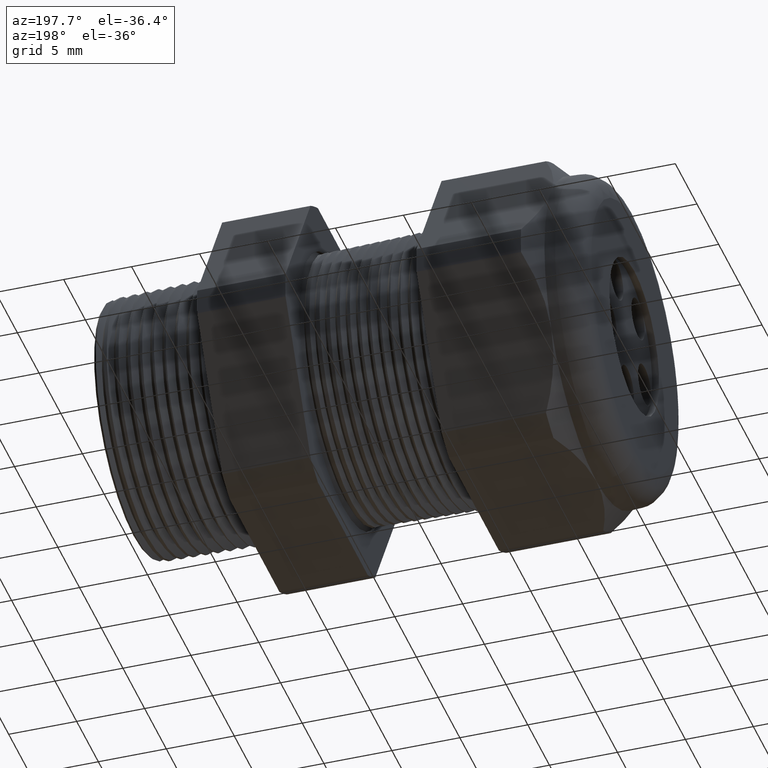
[diagram: clean part render]
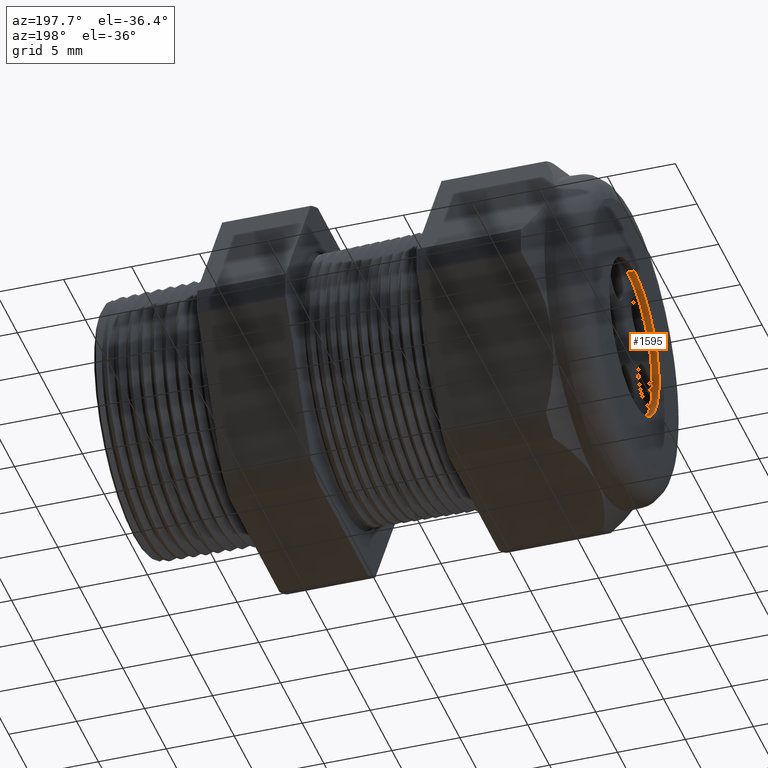
[diagram: same view with one face highlighted and labeled with its STEP entity id]
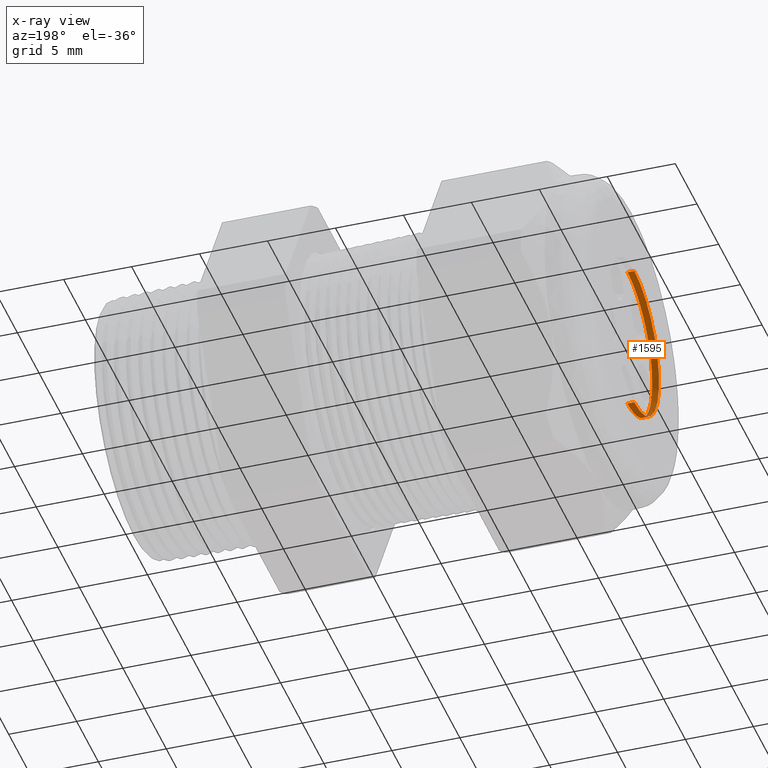
[diagram: x-ray of the same camera — body ghosted, the highlighted face saturated]
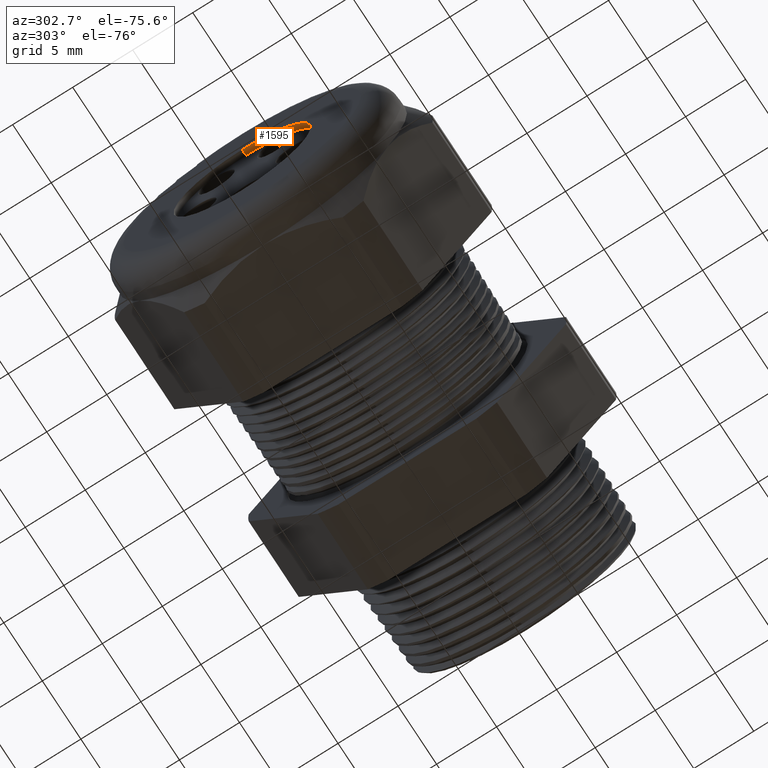
[diagram: same view with one face highlighted and labeled with its STEP entity id]
A machine part, auxiliary view. The second image highlights one B-rep face of the part: STEP entity #1595.
The next image is the same camera in x-ray: the body ghosted, the highlighted face saturated — about 0% of this face is hidden behind the body in this view.
A second angle (auxiliary view) of the same face is appended — the face is thin or edge-on in the first view.
In plain terms, the highlighted cylindrical surface (partial cylindrical patch) has radius 5.715 mm, axis along (-1, 0, 0).
Its self-contained STEP definition (entity closure, byte-faithful):
#1524 = VERTEX_POINT ( 'NONE', #4597 ) ;
#1525 = EDGE_CURVE ( 'NONE', #1536, #1526, #4596, .T. ) ;
#1526 = VERTEX_POINT ( 'NONE', #4592 ) ;
#1528 = ORIENTED_EDGE ( 'NONE', *, *, #1533, .F. ) ;
#1531 = ORIENTED_EDGE ( 'NONE', *, *, #1532, .T. ) ;
#1532 = EDGE_CURVE ( 'NONE', #1526, #1524, #4580, .T. ) ;
#1533 = EDGE_CURVE ( 'NONE', #1542, #1524, #4575, .T. ) ;
#1536 = VERTEX_POINT ( 'NONE', #4570 ) ;
#1537 = EDGE_CURVE ( 'NONE', #1536, #1542, #4569, .T. ) ;
#1538 = ORIENTED_EDGE ( 'NONE', *, *, #1525, .T. ) ;
#1542 = VERTEX_POINT ( 'NONE', #4622 ) ;
#1595 = ADVANCED_FACE ( 'NONE', ( #4670 ), #4669, .F. ) ;
#1596 = EDGE_LOOP ( 'NONE', ( #1597, #1538, #1531, #1528 ) ) ;
#1597 = ORIENTED_EDGE ( 'NONE', *, *, #1537, .F. ) ;
#4569 = CIRCLE ( 'NONE', #4631, 0.2249999999999999800 ) ;
#4570 = CARTESIAN_POINT ( 'NONE',  ( -1.389999999999999900, 2.755455298081544500E-017, -0.2249999999999999800 ) ) ;
#4572 = DIRECTION ( 'NONE',  ( -1.000000000000000000, 0.0000000000000000000, 0.0000000000000000000 ) ) ;
#4573 = VECTOR ( 'NONE', #4572, 39.37007874015748100 ) ;
#4574 = CARTESIAN_POINT ( 'NONE',  ( -1.389999999999999900, 0.0000000000000000000, 0.2249999999999999800 ) ) ;
#4575 = LINE ( 'NONE', #4574, #4573 ) ;
#4576 = DIRECTION ( 'NONE',  ( 0.0000000000000000000, 0.0000000000000000000, 1.000000000000000000 ) ) ;
#4577 = DIRECTION ( 'NONE',  ( -1.000000000000000000, 0.0000000000000000000, 0.0000000000000000000 ) ) ;
#4578 = CARTESIAN_POINT ( 'NONE',  ( -1.409999999999999900, 0.0000000000000000000, 0.0000000000000000000 ) ) ;
#4579 = AXIS2_PLACEMENT_3D ( 'NONE', #4578, #4577, #4576 ) ;
#4580 = CIRCLE ( 'NONE', #4579, 0.2249999999999999800 ) ;
#4592 = CARTESIAN_POINT ( 'NONE',  ( -1.409999999999999900, 2.755455298081544500E-017, -0.2249999999999999800 ) ) ;
#4593 = DIRECTION ( 'NONE',  ( -1.000000000000000000, 0.0000000000000000000, 0.0000000000000000000 ) ) ;
#4594 = VECTOR ( 'NONE', #4593, 39.37007874015748100 ) ;
#4595 = CARTESIAN_POINT ( 'NONE',  ( -1.389999999999999900, 2.755455298081544500E-017, -0.2249999999999999800 ) ) ;
#4596 = LINE ( 'NONE', #4595, #4594 ) ;
#4597 = CARTESIAN_POINT ( 'NONE',  ( -1.409999999999999900, 0.0000000000000000000, 0.2249999999999999800 ) ) ;
#4622 = CARTESIAN_POINT ( 'NONE',  ( -1.389999999999999900, 0.0000000000000000000, 0.2249999999999999800 ) ) ;
#4628 = DIRECTION ( 'NONE',  ( 0.0000000000000000000, 0.0000000000000000000, 1.000000000000000000 ) ) ;
#4629 = DIRECTION ( 'NONE',  ( -1.000000000000000000, 0.0000000000000000000, 0.0000000000000000000 ) ) ;
#4630 = CARTESIAN_POINT ( 'NONE',  ( -1.389999999999999900, 0.0000000000000000000, 0.0000000000000000000 ) ) ;
#4631 = AXIS2_PLACEMENT_3D ( 'NONE', #4630, #4629, #4628 ) ;
#4665 = DIRECTION ( 'NONE',  ( 0.0000000000000000000, 0.0000000000000000000, 1.000000000000000000 ) ) ;
#4666 = DIRECTION ( 'NONE',  ( -1.000000000000000000, 0.0000000000000000000, 0.0000000000000000000 ) ) ;
#4667 = CARTESIAN_POINT ( 'NONE',  ( -1.389999999999999900, 0.0000000000000000000, 0.0000000000000000000 ) ) ;
#4668 = AXIS2_PLACEMENT_3D ( 'NONE', #4667, #4666, #4665 ) ;
#4669 = CYLINDRICAL_SURFACE ( 'NONE', #4668, 0.2249999999999999800 ) ;
#4670 = FACE_OUTER_BOUND ( 'NONE', #1596, .T. ) ;